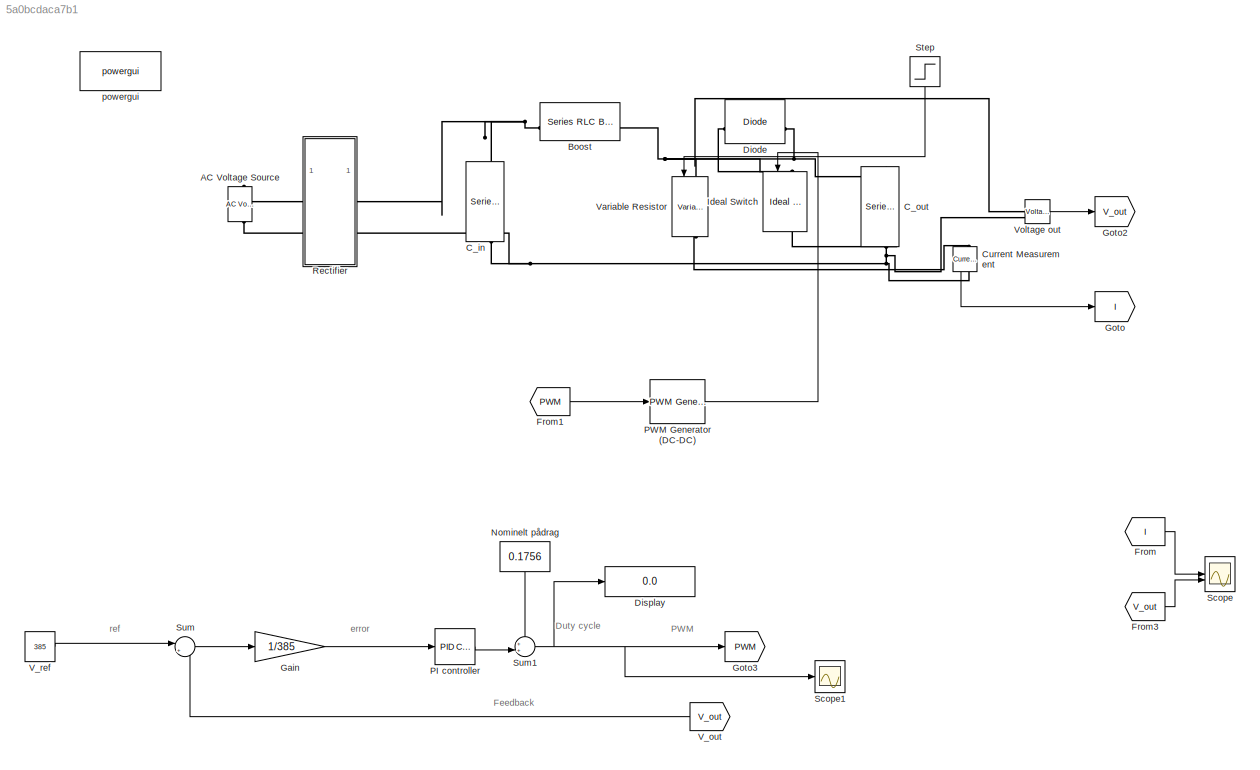
MODEL slx_5a0bcdaca7b1
KIND model
CONFIG AbsTol = auto
CONFIG EnableMultiTasking = off
CONFIG FixedStep = auto
CONFIG MaxStep = auto
CONFIG MinStep = auto
CONFIG RelTol = 1e-3
CONFIG SampleTimeConstraint = Unconstrained
CONFIG SolverName = VariableStepAuto
CONFIG StartTime = 0.0
CONFIG StopTime = 0.1
BLOCK [Reference] AC Voltage Source  REF=spsACVoltageSourceLib/AC Voltage Source
  LibrarySourceBlock = sps_lib/Sources/AC Voltage Source
  SourceBlock = spsACVoltageSourceLib/AC Voltage Source
  SourceType = AC Voltage Source
BLOCK [Reference] Boost  REF=spsSeriesRLCBranchLib/Series RLC Branch
  LibrarySourceBlock = sps_lib/Passives/Series RLC Branch
  SourceBlock = spsSeriesRLCBranchLib/Series RLC Branch
  SourceType = Series RLC Branch
BLOCK [Reference] C_in  REF=spsSeriesRLCBranchLib/Series RLC Branch
  LibrarySourceBlock = sps_lib/Passives/Series RLC Branch
  NameLocation = left
  SourceBlock = spsSeriesRLCBranchLib/Series RLC Branch
  SourceType = Series RLC Branch
BLOCK [Reference] C_out  REF=spsSeriesRLCBranchLib/Series RLC Branch
  LibrarySourceBlock = sps_lib/Passives/Series RLC Branch
  NameLocation = left
  SourceBlock = spsSeriesRLCBranchLib/Series RLC Branch
  SourceType = Series RLC Branch
BLOCK [Reference] Current Measurement  REF=spsCurrentMeasurementLib/Current Measurement
  LibrarySourceBlock = sps_lib/Sensors and Measurements/Current Measurement
  NameLocation = left
  SourceBlock = spsCurrentMeasurementLib/Current Measurement
  SourceType = Current Measurement
  UserDataPersistent = on
BLOCK [Reference] Diode  REF=spsDiodeLib/Diode
  LibrarySourceBlock = sps_lib/Power Electronics/Diode
  SourceBlock = spsDiodeLib/Diode
  SourceType = Diode
BLOCK [Display] Display
  Decimation = 1
BLOCK [From] From
  GotoTag = I
BLOCK [From] From1
  GotoTag = PWM
BLOCK [From] From3
  GotoTag = V_out
BLOCK [Gain] Gain
  Gain = 1/385
BLOCK [Goto] Goto
  GotoTag = I
BLOCK [Goto] Goto2
  GotoTag = V_out
BLOCK [Goto] Goto3
  GotoTag = PWM
BLOCK [Reference] Ideal Switch  REF=spsIdealSwitchLib/Ideal Switch
  LibrarySourceBlock = sps_lib/Power Electronics/Ideal Switch
  NameLocation = left
  SourceBlock = spsIdealSwitchLib/Ideal Switch
  SourceType = Ideal Switch
BLOCK [Constant] Nominelt pådrag
  Commented = on
  NameLocation = left
  Value = 0.1756
BLOCK [Reference] PI controller  REF=slpidlib/PID Controller
  LibrarySourceBlock = simulink/Continuous/PID Controller
  SourceBlock = slpidlib/PID Controller
  SourceType = PID 1dof
BLOCK [Reference] PWM Generator (DC-DC)  REF=spsPWMGeneratorDCDCLib/PWM Generator
(DC-DC)
  LibrarySourceBlock = sps_lib/Power Electronics/Power Electronics Control/PWM Generator\n(DC-DC)
  SourceBlock = spsPWMGeneratorDCDCLib/PWM Generator\n(DC-DC)
  SourceType = PWM Generator (DC-DC)
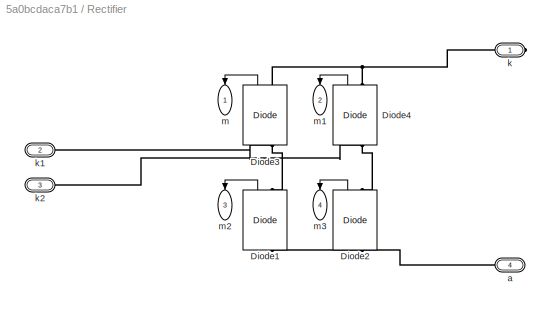
BLOCK [SubSystem] Rectifier
BLOCK [Reference] Rectifier/Diode1  REF=spsDiodeLib/Diode
  LibrarySourceBlock = sps_lib/Power Electronics/Diode
  NameLocation = right
  SourceBlock = spsDiodeLib/Diode
  SourceType = Diode
BLOCK [Reference] Rectifier/Diode2  REF=spsDiodeLib/Diode
  LibrarySourceBlock = sps_lib/Power Electronics/Diode
  NameLocation = right
  SourceBlock = spsDiodeLib/Diode
  SourceType = Diode
BLOCK [Reference] Rectifier/Diode3  REF=spsDiodeLib/Diode
  LibrarySourceBlock = sps_lib/Power Electronics/Diode
  NameLocation = right
  SourceBlock = spsDiodeLib/Diode
  SourceType = Diode
BLOCK [Reference] Rectifier/Diode4  REF=spsDiodeLib/Diode
  LibrarySourceBlock = sps_lib/Power Electronics/Diode
  NameLocation = right
  SourceBlock = spsDiodeLib/Diode
  SourceType = Diode
BLOCK [PMIOPort] Rectifier/a
  Port = 4
  Side = Right
BLOCK [PMIOPort] Rectifier/k
  Side = Right
BLOCK [PMIOPort] Rectifier/k1
  Port = 2
  Side = Left
BLOCK [PMIOPort] Rectifier/k2
  Port = 3
  Side = Left
BLOCK [Outport] Rectifier/m
  NameLocation = left
BLOCK [Outport] Rectifier/m1
  NameLocation = left
  Port = 2
BLOCK [Outport] Rectifier/m2
  NameLocation = left
  Port = 3
BLOCK [Outport] Rectifier/m3
  NameLocation = left
  Port = 4
BLOCK [Scope] Scope
  Floating = off
  NumInputPorts = 2
  ScopeSpecificationString = Simulink.scopes.TimeScopeBlockCfg('CurrentConfiguration', extmgr.ConfigurationSet(extmgr.Configuration('Core','General UI',true),extmgr.Configuration('Core','Source UI',true),extmgr.Configuration('Sources','WiredSimulink',true),extmgr.Configuration('Visuals','Time Domain',true,'PlotType','Line','SerializedDisplays',{struct('MinYLimReal','-1.30227','MaxYLimReal','11.72041','YLabelReal','','MinYLimM...<+2480ch>
BLOCK [Scope] Scope1
  Floating = off
  NumInputPorts = 1
  ScopeSpecificationString = Simulink.scopes.TimeScopeBlockCfg('CurrentConfiguration', extmgr.ConfigurationSet(extmgr.Configuration('Core','General UI',true),extmgr.Configuration('Core','Source UI',true),extmgr.Configuration('Sources','WiredSimulink',true,'DataLoggingVariableName','ScopeData2'),extmgr.Configuration('Visuals','Time Domain',true,'SerializedDisplays',{struct('MinYLimReal','0.15568','MaxYLimReal','0.28194','YLabe...<+1407ch>
BLOCK [Step] Step
  After = 192.5
  Before = 38.5
  NameLocation = left
  SampleTime = 1e-6
  Time = 0.5
BLOCK [Sum] Sum
  Inputs = |+-
BLOCK [Sum] Sum1
  Inputs = ++|
BLOCK [From] V_out
  GotoTag = V_out
  NameLocation = top
BLOCK [Constant] V_ref
  Value = 385
BLOCK [Reference] Variable Resistor  REF=spsVariableResistorLib/Variable Resistor
  LibrarySourceBlock = sps_lib/Passives/Variable Resistor
  NameLocation = left
  SourceBlock = spsVariableResistorLib/Variable Resistor
  SourceType = Variable Resistor
BLOCK [Reference] Voltage out  REF=spsVoltageMeasurementLib/Voltage Measurement
  LibrarySourceBlock = sps_lib/Sensors and Measurements/Voltage Measurement
  SourceBlock = spsVoltageMeasurementLib/Voltage Measurement
  SourceType = Voltage Measurement
  UserDataPersistent = on
BLOCK [Reference] powergui  REF=spspowerguiLib/powergui
  Priority = 1
  SourceBlock = spspowerguiLib/powergui
  SourceType = PSB option menu block
ANNOTATION (root): Duty cycle
ANNOTATION (root): Feedback
ANNOTATION (root): PWM
ANNOTATION (root): error
ANNOTATION (root): ref
LINE Current Measurement:1 -> Goto:1
LINE From1:1 -> PWM Generator (DC-DC):1
LINE From3:1 -> Scope:2
LINE From:1 -> Scope:1
LINE Gain:1 -> PI controller:1
LINE Nominelt pådrag:1 -> Sum1:1
LINE PI controller:1 -> Sum1:2
LINE PWM Generator (DC-DC):1 -> Ideal Switch:1
LINE Rectifier/Diode1:1 -> Rectifier/m2:1
LINE Rectifier/Diode2:1 -> Rectifier/m3:1
LINE Rectifier/Diode3:1 -> Rectifier/m:1
LINE Rectifier/Diode4:1 -> Rectifier/m1:1
LINE Step:1 -> Variable Resistor:1
NET Sum1:1 -> Display:1, Goto3:1, Scope1:1
LINE Sum:1 -> Gain:1
LINE V_out:1 -> Sum:2
LINE V_ref:1 -> Sum:1
LINE Voltage out:1 -> Goto2:1
PLINE AC Voltage Source:LConn1 -- Rectifier:LConn2
PLINE AC Voltage Source:RConn1 -- Rectifier:LConn1
PNET net1: Boost:LConn1 -- C_in:LConn1 -- Rectifier:RConn1
PNET net2: Boost:RConn1 -- Diode:LConn1 -- Ideal Switch:LConn1
PNET net3: C_in:RConn1 -- C_out:RConn1 -- Current Measurement:RConn1 -- Ideal Switch:RConn1 -- Rectifier:RConn2 -- Voltage out:LConn2
PNET net4: C_out:LConn1 -- Diode:RConn1 -- Variable Resistor:LConn1 -- Voltage out:LConn1
PLINE Current Measurement:LConn1 -- Variable Resistor:RConn1
PNET net5: Rectifier/Diode1:LConn1 -- Rectifier/Diode2:LConn1 -- Rectifier/a:RConn1
PNET net6: Rectifier/Diode1:RConn1 -- Rectifier/Diode3:LConn1 -- Rectifier/k1:RConn1
PNET net7: Rectifier/Diode2:RConn1 -- Rectifier/Diode4:LConn1 -- Rectifier/k2:RConn1
PNET net8: Rectifier/Diode3:RConn1 -- Rectifier/Diode4:RConn1 -- Rectifier/k:RConn1
note: NET lines group one-source signal fan-out (src -> all destinations, sorted); 1:1 wires keep LINE; PNET lines group multi-terminal physical nets as a canonical sorted terminal list (undirected conserving connections); 2-terminal nets keep the pairwise PLINE form
